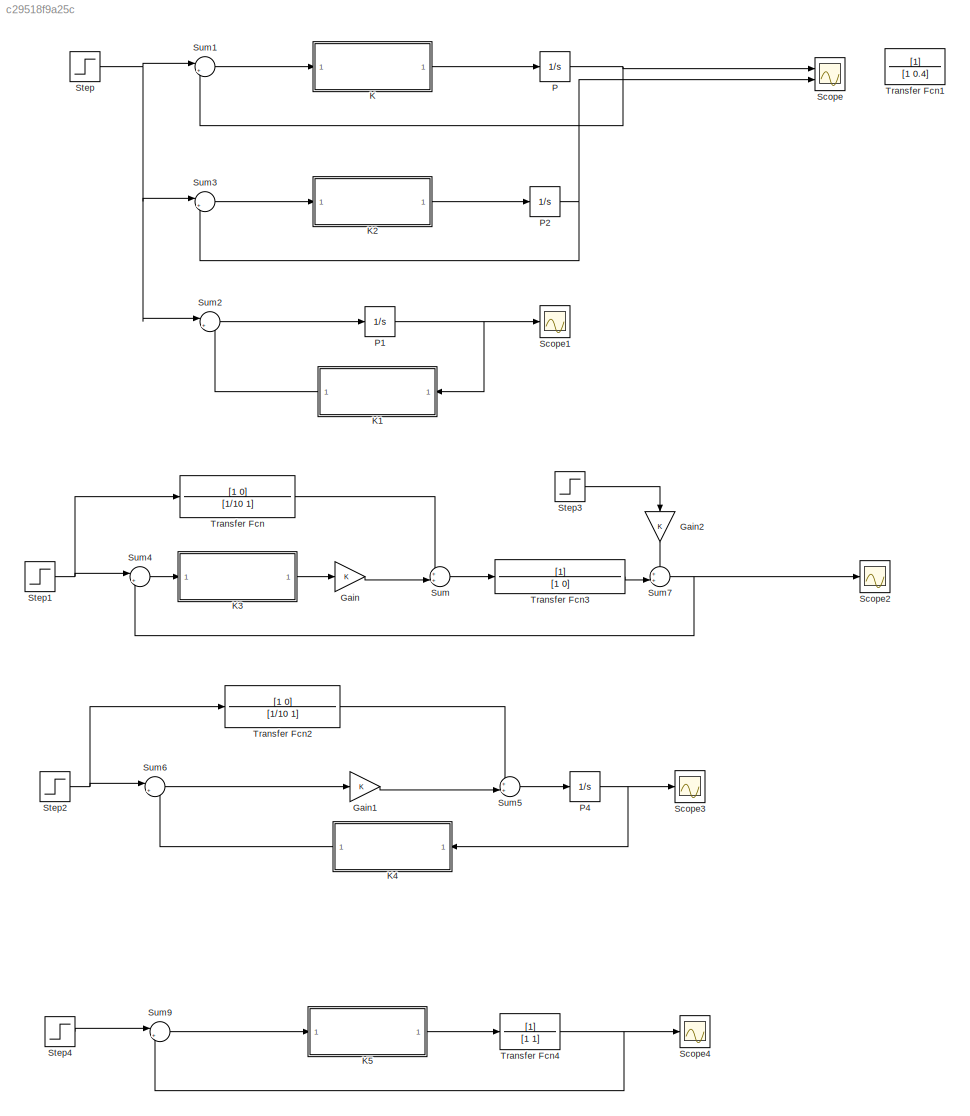
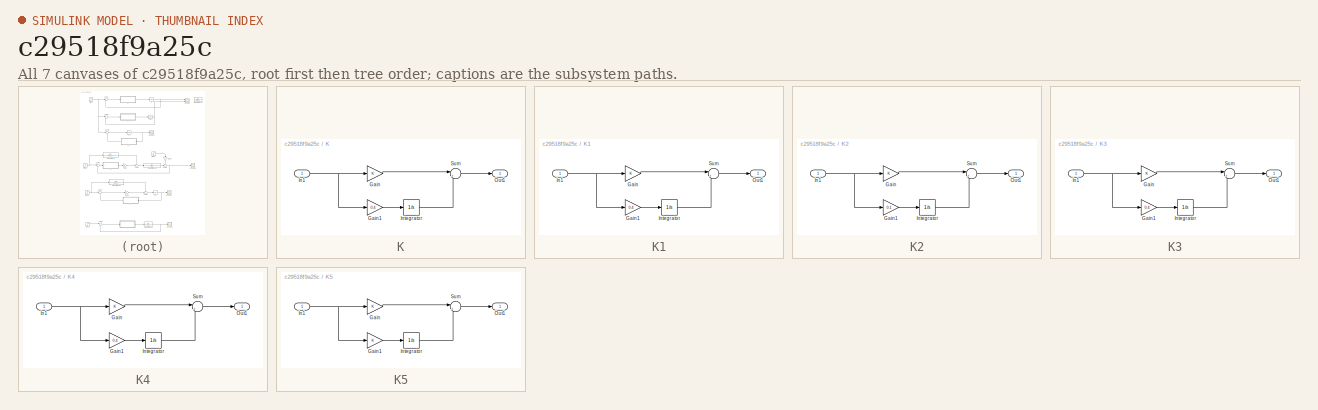
[diagram: thumbnail index - all 7 canvases of the model, root first then tree order]
MODEL slx_c29518f9a25c
KIND model
CONFIG AbsTol = auto
CONFIG EnableMultiTasking = off
CONFIG FixedStep = 0.01
CONFIG MaxStep = auto
CONFIG MinStep = auto
CONFIG RelTol = 1e-3
CONFIG SampleTimeConstraint = Unconstrained
CONFIG Solver = FixedStepAuto
CONFIG SolverName = FixedStepAuto
CONFIG StartTime = 0.0
CONFIG StopTime = 20
BLOCK [Gain] Gain
  OutDataTypeStr = Inherit: Inherit via internal rule
  ParamDataTypeStr = Inherit: Inherit via internal rule
  SaturateOnIntegerOverflow = off
BLOCK [Gain] Gain1
  OutDataTypeStr = Inherit: Inherit via internal rule
  ParamDataTypeStr = Inherit: Inherit via internal rule
  SaturateOnIntegerOverflow = off
BLOCK [Gain] Gain2
  OutDataTypeStr = Inherit: Inherit via internal rule
  ParamDataTypeStr = Inherit: Inherit via internal rule
  SaturateOnIntegerOverflow = off
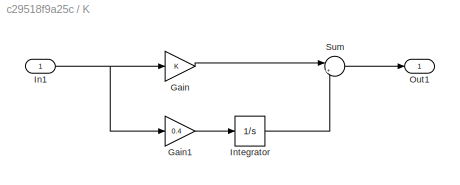
BLOCK [SubSystem] K
  Ports = [1, 1]
  RequestExecContextInheritance = off
BLOCK [Gain] K/Gain
  OutDataTypeStr = Inherit: Inherit via internal rule
  ParamDataTypeStr = Inherit: Inherit via internal rule
  SaturateOnIntegerOverflow = off
BLOCK [Gain] K/Gain1
  Gain = 0.4
  OutDataTypeStr = Inherit: Inherit via internal rule
  ParamDataTypeStr = Inherit: Inherit via internal rule
  SaturateOnIntegerOverflow = off
BLOCK [Inport] K/In1
  IconDisplay = Port number
BLOCK [Integrator] K/Integrator
  Ports = [1, 1]
BLOCK [Outport] K/Out1
  IconDisplay = Port number
BLOCK [Sum] K/Sum
  IconShape = round
  InputSameDT = off
  Inputs = |++
  OutDataTypeStr = Inherit: Inherit via internal rule
  Ports = [2, 1]
  SaturateOnIntegerOverflow = off
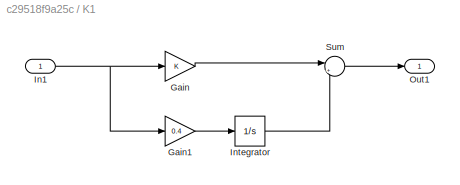
BLOCK [SubSystem] K1
  Ports = [1, 1]
  RequestExecContextInheritance = off
BLOCK [Gain] K1/Gain
  OutDataTypeStr = Inherit: Inherit via internal rule
  ParamDataTypeStr = Inherit: Inherit via internal rule
  SaturateOnIntegerOverflow = off
BLOCK [Gain] K1/Gain1
  Gain = 0.4
  OutDataTypeStr = Inherit: Inherit via internal rule
  ParamDataTypeStr = Inherit: Inherit via internal rule
  SaturateOnIntegerOverflow = off
BLOCK [Inport] K1/In1
  IconDisplay = Port number
BLOCK [Integrator] K1/Integrator
  Ports = [1, 1]
BLOCK [Outport] K1/Out1
  IconDisplay = Port number
BLOCK [Sum] K1/Sum
  IconShape = round
  InputSameDT = off
  Inputs = |++
  OutDataTypeStr = Inherit: Inherit via internal rule
  Ports = [2, 1]
  SaturateOnIntegerOverflow = off
BLOCK [SubSystem] K2
  Ports = [1, 1]
  RequestExecContextInheritance = off
BLOCK [Gain] K2/Gain
  OutDataTypeStr = Inherit: Inherit via internal rule
  ParamDataTypeStr = Inherit: Inherit via internal rule
  SaturateOnIntegerOverflow = off
BLOCK [Gain] K2/Gain1
  Gain = 0.1
  OutDataTypeStr = Inherit: Inherit via internal rule
  ParamDataTypeStr = Inherit: Inherit via internal rule
  SaturateOnIntegerOverflow = off
BLOCK [Inport] K2/In1
  IconDisplay = Port number
BLOCK [Integrator] K2/Integrator
  Ports = [1, 1]
BLOCK [Outport] K2/Out1
  IconDisplay = Port number
BLOCK [Sum] K2/Sum
  IconShape = round
  InputSameDT = off
  Inputs = |++
  OutDataTypeStr = Inherit: Inherit via internal rule
  Ports = [2, 1]
  SaturateOnIntegerOverflow = off
BLOCK [SubSystem] K3
  Ports = [1, 1]
  RequestExecContextInheritance = off
BLOCK [Gain] K3/Gain
  OutDataTypeStr = Inherit: Inherit via internal rule
  ParamDataTypeStr = Inherit: Inherit via internal rule
  SaturateOnIntegerOverflow = off
BLOCK [Gain] K3/Gain1
  Gain = 0.4
  OutDataTypeStr = Inherit: Inherit via internal rule
  ParamDataTypeStr = Inherit: Inherit via internal rule
  SaturateOnIntegerOverflow = off
BLOCK [Inport] K3/In1
  IconDisplay = Port number
BLOCK [Integrator] K3/Integrator
  Ports = [1, 1]
BLOCK [Outport] K3/Out1
  IconDisplay = Port number
BLOCK [Sum] K3/Sum
  IconShape = round
  InputSameDT = off
  Inputs = |++
  OutDataTypeStr = Inherit: Inherit via internal rule
  Ports = [2, 1]
  SaturateOnIntegerOverflow = off
BLOCK [SubSystem] K4
  Ports = [1, 1]
  RequestExecContextInheritance = off
BLOCK [Gain] K4/Gain
  OutDataTypeStr = Inherit: Inherit via internal rule
  ParamDataTypeStr = Inherit: Inherit via internal rule
  SaturateOnIntegerOverflow = off
BLOCK [Gain] K4/Gain1
  Gain = 0.4
  OutDataTypeStr = Inherit: Inherit via internal rule
  ParamDataTypeStr = Inherit: Inherit via internal rule
  SaturateOnIntegerOverflow = off
BLOCK [Inport] K4/In1
  IconDisplay = Port number
BLOCK [Integrator] K4/Integrator
  Ports = [1, 1]
BLOCK [Outport] K4/Out1
  IconDisplay = Port number
BLOCK [Sum] K4/Sum
  IconShape = round
  InputSameDT = off
  Inputs = |++
  OutDataTypeStr = Inherit: Inherit via internal rule
  Ports = [2, 1]
  SaturateOnIntegerOverflow = off
BLOCK [SubSystem] K5
  Ports = [1, 1]
  RequestExecContextInheritance = off
BLOCK [Gain] K5/Gain
  OutDataTypeStr = Inherit: Inherit via internal rule
  ParamDataTypeStr = Inherit: Inherit via internal rule
  SaturateOnIntegerOverflow = off
BLOCK [Gain] K5/Gain1
  OutDataTypeStr = Inherit: Inherit via internal rule
  ParamDataTypeStr = Inherit: Inherit via internal rule
  SaturateOnIntegerOverflow = off
BLOCK [Inport] K5/In1
  IconDisplay = Port number
BLOCK [Integrator] K5/Integrator
  Ports = [1, 1]
BLOCK [Outport] K5/Out1
  IconDisplay = Port number
BLOCK [Sum] K5/Sum
  IconShape = round
  InputSameDT = off
  Inputs = |++
  OutDataTypeStr = Inherit: Inherit via internal rule
  Ports = [2, 1]
  SaturateOnIntegerOverflow = off
BLOCK [Integrator] P
  Ports = [1, 1]
BLOCK [Integrator] P1
  Ports = [1, 1]
BLOCK [Integrator] P2
  Ports = [1, 1]
BLOCK [Integrator] P4
  Ports = [1, 1]
BLOCK [Scope] Scope
  Floating = off
  NumInputPorts = 2
  Ports = [2]
  ScopeSpecificationString = Simulink.scopes.TimeScopeBlockCfg('CurrentConfiguration', extmgr.ConfigurationSet(extmgr.Configuration('Core','General UI',true),extmgr.Configuration('Core','Source UI',true),extmgr.Configuration('Sources','WiredSimulink',true),extmgr.Configuration('Visuals','Time Domain',true,'SerializedDisplays',{struct('MinYLimReal','-0.1478','MaxYLimReal','1.33017','YLabelReal','','MinYLimMag','0.00000','MaxYL...<+1379ch>
BLOCK [Scope] Scope1
  Floating = off
  NumInputPorts = 1
  Ports = [1]
  ScopeSpecificationString = Simulink.scopes.TimeScopeBlockCfg('CurrentConfiguration', extmgr.ConfigurationSet(extmgr.Configuration('Core','General UI',true),extmgr.Configuration('Core','Source UI',true),extmgr.Configuration('Sources','WiredSimulink',true,'DataLoggingVariableName','ScopeData1'),extmgr.Configuration('Visuals','Time Domain',true,'SerializedDisplays',{struct('MinYLimReal','-0.09756','MaxYLimReal','0.7611','YLabe...<+1412ch>
BLOCK [Scope] Scope2
  Floating = off
  NumInputPorts = 1
  Ports = [1]
  ScopeSpecificationString = Simulink.scopes.TimeScopeBlockCfg('CurrentConfiguration', extmgr.ConfigurationSet(extmgr.Configuration('Core','General UI',true),extmgr.Configuration('Core','Source UI',true),extmgr.Configuration('Sources','WiredSimulink',true,'DataLoggingVariableName','ScopeData2'),extmgr.Configuration('Visuals','Time Domain',true,'SerializedDisplays',{struct('MinYLimReal','-0.24965','MaxYLimReal','2.24687','YLab...<+1418ch>
BLOCK [Scope] Scope3
  Floating = off
  NumInputPorts = 1
  Ports = [1]
  ScopeSpecificationString = Simulink.scopes.TimeScopeBlockCfg('CurrentConfiguration', extmgr.ConfigurationSet(extmgr.Configuration('Core','General UI',true),extmgr.Configuration('Core','Source UI',true),extmgr.Configuration('Sources','WiredSimulink',true,'DataLoggingVariableName','ScopeData3'),extmgr.Configuration('Visuals','Time Domain',true,'SerializedDisplays',{struct('MinYLimReal','-0.15101','MaxYLimReal','1.16661','YLab...<+1416ch>
BLOCK [Scope] Scope4
  Floating = off
  NumInputPorts = 1
  Ports = [1]
  ScopeSpecificationString = Simulink.scopes.TimeScopeBlockCfg('CurrentConfiguration', extmgr.ConfigurationSet(extmgr.Configuration('Core','General UI',true),extmgr.Configuration('Core','Source UI',true),extmgr.Configuration('Sources','WiredSimulink',true,'DataLoggingVariableName','ScopeData1'),extmgr.Configuration('Visuals','Time Domain',true,'SerializedDisplays',{struct('MinYLimReal','-0.125','MaxYLimReal','1.125','YLabelRe...<+1415ch>
BLOCK [Step] Step
  SampleTime = 0
BLOCK [Step] Step1
  SampleTime = 0
BLOCK [Step] Step2
  SampleTime = 0
BLOCK [Step] Step3
  SampleTime = 0
  Time = 5
BLOCK [Step] Step4
  SampleTime = 0
BLOCK [Sum] Sum
  IconShape = round
  InputSameDT = off
  Inputs = ++|
  OutDataTypeStr = Inherit: Inherit via internal rule
  Ports = [2, 1]
  SaturateOnIntegerOverflow = off
BLOCK [Sum] Sum1
  IconShape = round
  InputSameDT = off
  Inputs = |+-
  OutDataTypeStr = Inherit: Inherit via internal rule
  Ports = [2, 1]
  SaturateOnIntegerOverflow = off
BLOCK [Sum] Sum2
  IconShape = round
  InputSameDT = off
  Inputs = |+-
  OutDataTypeStr = Inherit: Inherit via internal rule
  Ports = [2, 1]
  SaturateOnIntegerOverflow = off
BLOCK [Sum] Sum3
  IconShape = round
  InputSameDT = off
  Inputs = |+-
  OutDataTypeStr = Inherit: Inherit via internal rule
  Ports = [2, 1]
  SaturateOnIntegerOverflow = off
BLOCK [Sum] Sum4
  IconShape = round
  InputSameDT = off
  Inputs = |+-
  OutDataTypeStr = Inherit: Inherit via internal rule
  Ports = [2, 1]
  SaturateOnIntegerOverflow = off
BLOCK [Sum] Sum5
  IconShape = round
  InputSameDT = off
  Inputs = ++|
  OutDataTypeStr = Inherit: Inherit via internal rule
  Ports = [2, 1]
  SaturateOnIntegerOverflow = off
BLOCK [Sum] Sum6
  IconShape = round
  InputSameDT = off
  Inputs = |+-
  OutDataTypeStr = Inherit: Inherit via internal rule
  Ports = [2, 1]
  SaturateOnIntegerOverflow = off
BLOCK [Sum] Sum7
  IconShape = round
  InputSameDT = off
  Inputs = ++|
  OutDataTypeStr = Inherit: Inherit via internal rule
  Ports = [2, 1]
  SaturateOnIntegerOverflow = off
BLOCK [Sum] Sum9
  IconShape = round
  InputSameDT = off
  Inputs = |+-
  OutDataTypeStr = Inherit: Inherit via internal rule
  Ports = [2, 1]
  SaturateOnIntegerOverflow = off
BLOCK [TransferFcn] Transfer Fcn
  Denominator = [1/10 1]
  Numerator = [1 0]
BLOCK [TransferFcn] Transfer Fcn1
  Denominator = [1 0.4]
BLOCK [TransferFcn] Transfer Fcn2
  Denominator = [1/10 1]
  Numerator = [1 0]
BLOCK [TransferFcn] Transfer Fcn3
  Denominator = [1 0]
BLOCK [TransferFcn] Transfer Fcn4
  Denominator = [1 1]
LINE Gain1:1 -> Sum5:2
LINE Gain2:1 -> Sum7:1
LINE Gain:1 -> Sum:2
LINE K/Gain1:1 -> K/Integrator:1
LINE K/Gain:1 -> K/Sum:1
NET K/In1:1 -> K/Gain1:1, K/Gain:1
LINE K/Integrator:1 -> K/Sum:2
LINE K/Sum:1 -> K/Out1:1
LINE K1/Gain1:1 -> K1/Integrator:1
LINE K1/Gain:1 -> K1/Sum:1
NET K1/In1:1 -> K1/Gain1:1, K1/Gain:1
LINE K1/Integrator:1 -> K1/Sum:2
LINE K1/Sum:1 -> K1/Out1:1
LINE K1:1 -> Sum2:2
LINE K2/Gain1:1 -> K2/Integrator:1
LINE K2/Gain:1 -> K2/Sum:1
NET K2/In1:1 -> K2/Gain1:1, K2/Gain:1
LINE K2/Integrator:1 -> K2/Sum:2
LINE K2/Sum:1 -> K2/Out1:1
LINE K2:1 -> P2:1
LINE K3/Gain1:1 -> K3/Integrator:1
LINE K3/Gain:1 -> K3/Sum:1
NET K3/In1:1 -> K3/Gain1:1, K3/Gain:1
LINE K3/Integrator:1 -> K3/Sum:2
LINE K3/Sum:1 -> K3/Out1:1
LINE K3:1 -> Gain:1
LINE K4/Gain1:1 -> K4/Integrator:1
LINE K4/Gain:1 -> K4/Sum:1
NET K4/In1:1 -> K4/Gain1:1, K4/Gain:1
LINE K4/Integrator:1 -> K4/Sum:2
LINE K4/Sum:1 -> K4/Out1:1
LINE K4:1 -> Sum6:2
LINE K5/Gain1:1 -> K5/Integrator:1
LINE K5/Gain:1 -> K5/Sum:1
NET K5/In1:1 -> K5/Gain1:1, K5/Gain:1
LINE K5/Integrator:1 -> K5/Sum:2
LINE K5/Sum:1 -> K5/Out1:1
LINE K5:1 -> Transfer Fcn4:1
LINE K:1 -> P:1
NET P1:1 -> K1:1, Scope1:1
NET P2:1 -> Scope:2, Sum3:2
NET P4:1 -> K4:1, Scope3:1
NET P:1 -> Scope:1, Sum1:2
NET Step1:1 -> Sum4:1, Transfer Fcn:1
NET Step2:1 -> Sum6:1, Transfer Fcn2:1
LINE Step3:1 -> Gain2:1
LINE Step4:1 -> Sum9:1
NET Step:1 -> Sum1:1, Sum2:1, Sum3:1
LINE Sum1:1 -> K:1
LINE Sum2:1 -> P1:1
LINE Sum3:1 -> K2:1
LINE Sum4:1 -> K3:1
LINE Sum5:1 -> P4:1
LINE Sum6:1 -> Gain1:1
NET Sum7:1 -> Scope2:1, Sum4:2
LINE Sum9:1 -> K5:1
LINE Sum:1 -> Transfer Fcn3:1
LINE Transfer Fcn2:1 -> Sum5:1
LINE Transfer Fcn3:1 -> Sum7:2
NET Transfer Fcn4:1 -> Scope4:1, Sum9:2
LINE Transfer Fcn:1 -> Sum:1
note: NET lines group one-source signal fan-out (src -> all destinations, sorted); 1:1 wires keep LINE
